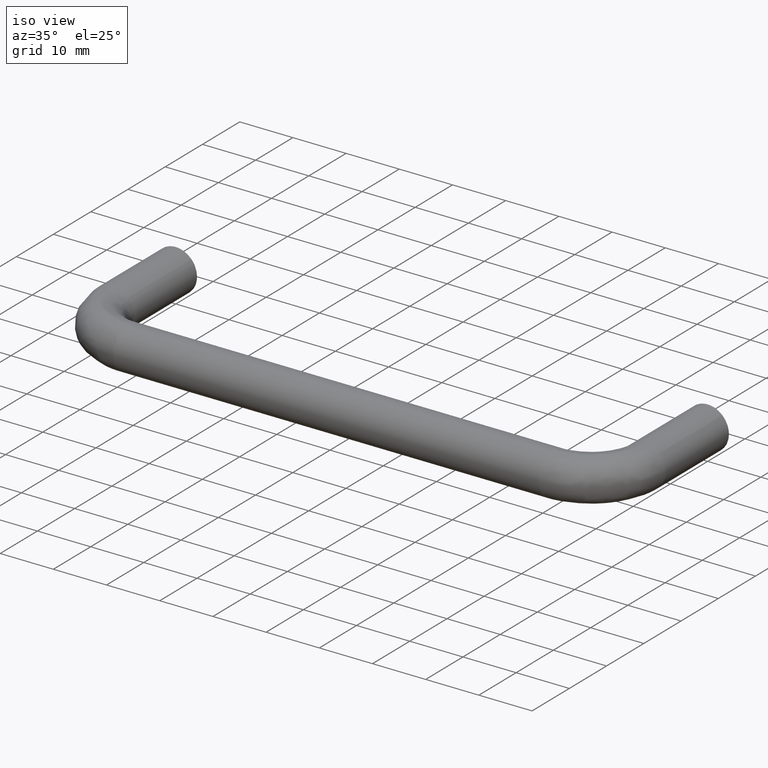
[diagram: clean part render]
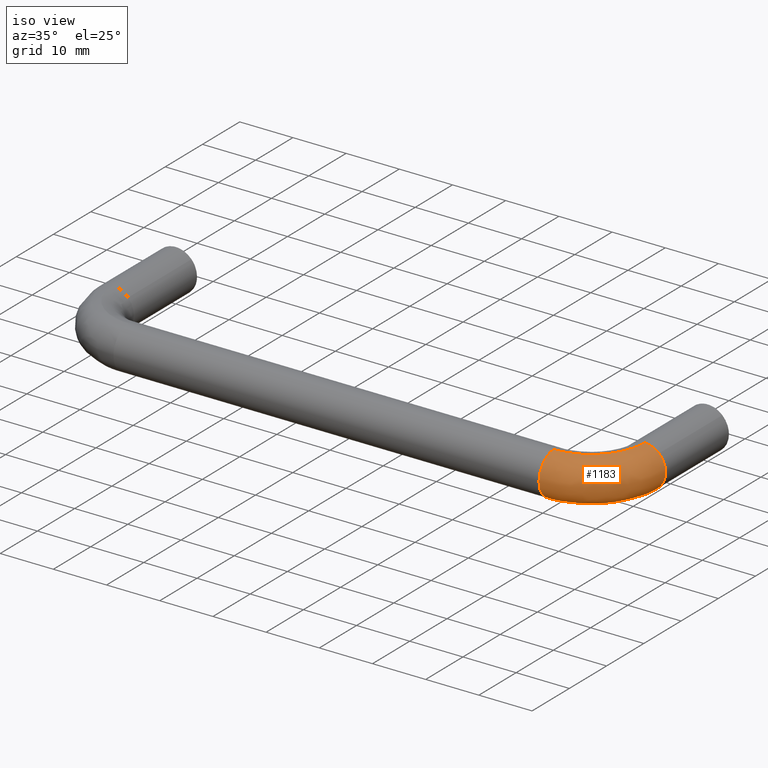
[diagram: same view with one face highlighted and labeled with its STEP entity id]
A machine part, iso view. The second image highlights one B-rep face of the part: STEP entity #1183.
In plain terms, the highlighted face is a freeform B-spline surface patch.
Its self-contained STEP definition (entity closure, byte-faithful):
#447=CARTESIAN_POINT('',(102.753417296883400,-17.000000000319861,2.901498437969774));
#448=VERTEX_POINT('',#447);
#454=CARTESIAN_POINT('',(104.0,-17.0,0.0));
#455=VERTEX_POINT('',#454);
#456=CARTESIAN_POINT('',(102.753417296883380,-17.000000000319858,2.901498437969774));
#457=CARTESIAN_POINT('',(104.000000000000010,-17.000000000000004,1.718536444349027));
#458=CARTESIAN_POINT('',(104.0,-17.0,0.0));
#466=(BOUNDED_CURVE()B_SPLINE_CURVE(2,(#456,#457,#458),.UNSPECIFIED.,.F.,.U.)B_SPLINE_CURVE_WITH_KNOTS((3,3),(0.871049474395075,1.0),.UNSPECIFIED.)CURVE()GEOMETRIC_REPRESENTATION_ITEM()RATIONAL_B_SPLINE_CURVE((0.853699665239731,0.848925061951548,1.0))REPRESENTATION_ITEM(''));
#467=EDGE_CURVE('',#448,#455,#466,.T.);
#469=CARTESIAN_POINT('',(99.899479618209057,-16.999999999993349,-3.998736757132757));
#470=VERTEX_POINT('',#469);
#471=CARTESIAN_POINT('',(104.0,-17.0,0.0));
#472=CARTESIAN_POINT('',(104.000000000000030,-17.000000000000004,-4.000000000000000));
#473=CARTESIAN_POINT('',(100.0,-17.0,-4.0));
#474=CARTESIAN_POINT('',(99.949731871488893,-17.0,-4.000000000000001));
#475=CARTESIAN_POINT('',(99.899479618209057,-16.999999999993353,-3.998736757132757));
#483=(BOUNDED_CURVE()B_SPLINE_CURVE(2,(#471,#472,#473,#474,#475),.UNSPECIFIED.,.F.,.U.)B_SPLINE_CURVE_WITH_KNOTS((3,2,3),(0.0,0.250000000000000,0.254420108231731),.UNSPECIFIED.)CURVE()GEOMETRIC_REPRESENTATION_ITEM()RATIONAL_B_SPLINE_CURVE((1.0,0.707106781186548,1.0,0.994821521090018,0.989826157678098))REPRESENTATION_ITEM(''));
#484=EDGE_CURVE('',#455,#470,#483,.T.);
#586=CARTESIAN_POINT('',(100.100520386068500,-17.000000001000490,3.998736757025227));
#587=VERTEX_POINT('',#586);
#603=CARTESIAN_POINT('',(100.100520386068520,-17.000000001000497,3.998736757025226));
#604=CARTESIAN_POINT('',(101.637893546442600,-17.000000000606054,3.960090214476969));
#605=CARTESIAN_POINT('',(102.753417296883380,-17.000000000319861,2.901498437969774));
#613=(BOUNDED_CURVE()B_SPLINE_CURVE(2,(#603,#604,#605),.UNSPECIFIED.,.F.,.U.)B_SPLINE_CURVE_WITH_KNOTS((3,3),(0.754420108606092,0.871049474395076),.UNSPECIFIED.)CURVE()GEOMETRIC_REPRESENTATION_ITEM()RATIONAL_B_SPLINE_CURVE((0.989826156831933,0.858018057512910,0.853699665239731))REPRESENTATION_ITEM(''));
#614=EDGE_CURVE('',#587,#448,#613,.T.);
#646=CARTESIAN_POINT('',(90.000000000598845,-28.486157657465750,3.713668726938179));
#647=VERTEX_POINT('',#646);
#648=CARTESIAN_POINT('',(90.0,-31.0,0.0));
#649=VERTEX_POINT('',#648);
#650=CARTESIAN_POINT('',(90.000000000598845,-28.486157657465743,3.713668726938179));
#651=CARTESIAN_POINT('',(89.999999999999986,-31.000000000000004,2.707664603616569));
#652=CARTESIAN_POINT('',(90.0,-31.0,0.0));
#660=(BOUNDED_CURVE()B_SPLINE_CURVE(2,(#650,#651,#652),.UNSPECIFIED.,.F.,.U.)B_SPLINE_CURVE_WITH_KNOTS((3,3),(0.813083199559747,1.0),.UNSPECIFIED.)CURVE()GEOMETRIC_REPRESENTATION_ITEM()RATIONAL_B_SPLINE_CURVE((0.889484969979009,0.781013346674970,1.0))REPRESENTATION_ITEM(''));
#661=EDGE_CURVE('',#647,#649,#660,.T.);
#754=CARTESIAN_POINT('',(89.999988457094148,-26.899482878654041,-3.998736839091613));
#755=VERTEX_POINT('',#754);
#769=CARTESIAN_POINT('',(90.0,-31.0,0.0));
#770=CARTESIAN_POINT('',(89.999994371802188,-31.000000000000021,-3.999999999999516));
#771=CARTESIAN_POINT('',(89.999988600349283,-27.000000000000028,-3.999999999999020));
#772=CARTESIAN_POINT('',(89.999988527821600,-26.949733502492712,-3.999999999999013));
#773=CARTESIAN_POINT('',(89.999988457094148,-26.899482878654045,-3.998736839091613));
#781=(BOUNDED_CURVE()B_SPLINE_CURVE(2,(#769,#770,#771,#772,#773),.UNSPECIFIED.,.F.,.U.)B_SPLINE_CURVE_WITH_KNOTS((3,2,3),(0.0,0.250000000000000,0.254419965559188),.UNSPECIFIED.)CURVE()GEOMETRIC_REPRESENTATION_ITEM()RATIONAL_B_SPLINE_CURVE((1.0,0.707106781186548,1.0,0.994821688241299,0.989826480159624))REPRESENTATION_ITEM(''));
#782=EDGE_CURVE('',#649,#755,#781,.T.);
#801=CARTESIAN_POINT('',(90.000000000928935,-27.100520385913359,3.998736757029128));
#802=VERTEX_POINT('',#801);
#803=CARTESIAN_POINT('',(90.000000000928935,-27.100520385913359,3.998736757029128));
#804=CARTESIAN_POINT('',(90.000000000757794,-27.818947172575747,3.980676918332561));
#805=CARTESIAN_POINT('',(90.000000000598845,-28.486157657465750,3.713668726938180));
#813=(BOUNDED_CURVE()B_SPLINE_CURVE(2,(#803,#804,#805),.UNSPECIFIED.,.F.,.U.)B_SPLINE_CURVE_WITH_KNOTS((3,3),(0.754420108592513,0.813083199559746),.UNSPECIFIED.)CURVE()GEOMETRIC_REPRESENTATION_ITEM()RATIONAL_B_SPLINE_CURVE((0.989826156862626,0.923528355540182,0.889484969979010))REPRESENTATION_ITEM(''));
#814=EDGE_CURVE('',#802,#647,#813,.T.);
#1112=CARTESIAN_POINT('',(89.999988457094148,-26.899482878654037,-3.998736839091613));
#1113=CARTESIAN_POINT('',(99.899479618229250,-26.899492791355812,-3.998736798112186));
#1114=CARTESIAN_POINT('',(99.899479618209057,-16.999999999993349,-3.998736757132757));
#1122=(BOUNDED_CURVE()B_SPLINE_CURVE(2,(#1112,#1113,#1114),.UNSPECIFIED.,.F.,.U.)B_SPLINE_CURVE_WITH_KNOTS((3,3),(-1.733069079221911,-0.253787686440282),.UNSPECIFIED.)CURVE()GEOMETRIC_REPRESENTATION_ITEM()RATIONAL_B_SPLINE_CURVE((0.889551596146883,0.630646629591462,0.894193517001425))REPRESENTATION_ITEM(''));
#1123=EDGE_CURVE('',#755,#470,#1122,.T.);
#1128=CARTESIAN_POINT('',(90.000000000928935,-27.100520385913367,3.998736757029127));
#1129=CARTESIAN_POINT('',(100.100520379772320,-27.100520379915505,3.998736757133198));
#1130=CARTESIAN_POINT('',(100.100520386068520,-17.000000001000490,3.998736757025227));
#1138=(BOUNDED_CURVE()B_SPLINE_CURVE(2,(#1128,#1129,#1130),.UNSPECIFIED.,.F.,.U.)B_SPLINE_CURVE_WITH_KNOTS((3,3),(-1.733067862541822,-0.253787686649453),.UNSPECIFIED.)CURVE()GEOMETRIC_REPRESENTATION_ITEM()RATIONAL_B_SPLINE_CURVE((0.889551170258668,0.630646846390245,0.894193516926894))REPRESENTATION_ITEM(''));
#1139=EDGE_CURVE('',#802,#587,#1138,.T.);
#1144=CARTESIAN_POINT('',(89.313709611416542,-26.818757047730863,-3.997309737113414));
#1145=CARTESIAN_POINT('',(100.603907075478090,-27.607895017753783,-3.997309737113413));
#1146=CARTESIAN_POINT('',(99.819014406786891,-16.317401626769097,-3.997309737113413));
#1147=CARTESIAN_POINT('',(89.311736374040194,-26.846988156192008,-3.998021143107007));
#1148=CARTESIAN_POINT('',(100.634395664747030,-27.638395073242979,-3.998021143107007));
#1149=CARTESIAN_POINT('',(99.847246255212525,-16.315439004757334,-3.998021143107007));
#1150=CARTESIAN_POINT('',(89.030936588062460,-30.864390881678300,-4.099257138906549));
#1151=CARTESIAN_POINT('',(104.973047184358090,-31.978678283106611,-4.099257138906546));
#1152=CARTESIAN_POINT('',(103.864754280684180,-16.036149828775123,-4.099257138906547));
#1153=CARTESIAN_POINT('',(89.023927730127056,-30.964666616840415,-0.100520381773350));
#1154=CARTESIAN_POINT('',(105.081341398423620,-32.087013224714468,-0.100520381773350));
#1155=CARTESIAN_POINT('',(103.965032644169650,-16.029178676177754,-0.100520381773350));
#1156=CARTESIAN_POINT('',(89.016918872191638,-31.064942352002518,3.898216375359848));
#1157=CARTESIAN_POINT('',(105.189635612489130,-32.195348166322347,3.898216375359850));
#1158=CARTESIAN_POINT('',(104.065311007655130,-16.022207523580402,3.898216375359848));
#1159=CARTESIAN_POINT('',(89.297724401062638,-27.047457462938443,3.999454441629339));
#1160=CARTESIAN_POINT('',(100.850895359147360,-27.854976189356798,3.999454441629338));
#1161=CARTESIAN_POINT('',(100.047720816452110,-16.301502411561007,3.999454441629339));
#1162=CARTESIAN_POINT('',(89.299703313794410,-27.019145157163319,4.000167893743647));
#1163=CARTESIAN_POINT('',(100.820319079678130,-27.824388410688581,4.000167893743645));
#1164=CARTESIAN_POINT('',(100.019407768584270,-16.303470678396671,4.000167893743645));
#1172=(BOUNDED_SURFACE()B_SPLINE_SURFACE(2,2,((#1144,#1147,#1150,#1153,#1156,#1159,#1162),(#1145,#1148,#1151,#1154,#1157,#1160,#1163),(#1146,#1149,#1152,#1155,#1158,#1161,#1164)),.UNSPECIFIED.,.F.,.F.,.U.)B_SPLINE_SURFACE_WITH_KNOTS((3,3),(3,1,2,1,3),(0.0,25.510909898789301),(0.0,0.066921637708202,6.694338635677739,13.321755633647280,13.388871468533379),.UNSPECIFIED.)GEOMETRIC_REPRESENTATION_ITEM()RATIONAL_B_SPLINE_SURFACE(((0.922142341808611,0.919431100208950,0.648218828471002,0.916719858609290,0.648218828471002,0.919438967850647,0.922158077092005),(0.606814829149733,0.605030699375522,0.426559740092609,0.603246569601310,0.426559740092609,0.605035876669130,0.606825183736950),(0.927278055106887,0.924551713713076,0.651828971836767,0.921825372319266,0.651828971836767,0.924559625172252,0.927293878025238)))REPRESENTATION_ITEM('')SURFACE());
#1173=ORIENTED_EDGE('',*,*,#467,.F.);
#1174=ORIENTED_EDGE('',*,*,#614,.F.);
#1175=ORIENTED_EDGE('',*,*,#1139,.F.);
#1176=ORIENTED_EDGE('',*,*,#814,.T.);
#1177=ORIENTED_EDGE('',*,*,#661,.T.);
#1178=ORIENTED_EDGE('',*,*,#782,.T.);
#1179=ORIENTED_EDGE('',*,*,#1123,.T.);
#1180=ORIENTED_EDGE('',*,*,#484,.F.);
#1181=EDGE_LOOP('',(#1173,#1174,#1175,#1176,#1177,#1178,#1179,#1180));
#1182=FACE_OUTER_BOUND('',#1181,.T.);
#1183=ADVANCED_FACE('',(#1182),#1172,.T.);